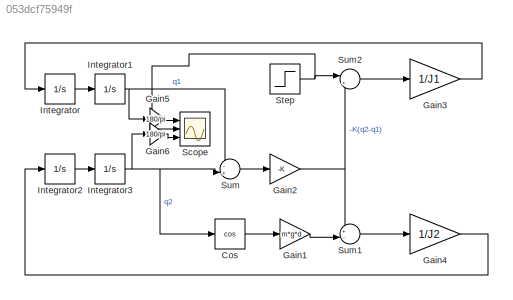
MODEL slx_053dcf75949f
KIND model
CONFIG AbsTol = auto
CONFIG EnableMultiTasking = off
CONFIG FixedStep = auto
CONFIG InitFcn = K=0.1;\n\nm=10;\ng=9.81;\nd = 0.5;\n\nJ1 = 1;\nJ2 = 10;
CONFIG MaxStep = auto
CONFIG MinStep = auto
CONFIG RelTol = 1e-3
CONFIG SampleTimeConstraint = Unconstrained
CONFIG SolverName = VariableStepAuto
CONFIG StartTime = 0.0
CONFIG StopTime = 10
BLOCK [Trigonometry] Cos
  Operator = cos
  Ports = [1, 1]
BLOCK [Gain] Gain1
  Gain = m*g*d
BLOCK [Gain] Gain2
  Gain = -K
BLOCK [Gain] Gain3
  Gain = 1/J1
BLOCK [Gain] Gain4
  Gain = 1/J2
BLOCK [Gain] Gain5
  Gain = 180/pi
BLOCK [Gain] Gain6
  Gain = 180/pi
BLOCK [Integrator] Integrator
  Ports = [1, 1]
BLOCK [Integrator] Integrator1
  Ports = [1, 1]
BLOCK [Integrator] Integrator2
  Ports = [1, 1]
BLOCK [Integrator] Integrator3
  Ports = [1, 1]
BLOCK [Scope] Scope
  Floating = off
  NumInputPorts = 3
  Ports = [3]
  ScopeSpecificationString = Simulink.scopes.TimeScopeBlockCfg('CurrentConfiguration', extmgr.ConfigurationSet(extmgr.Configuration('Core','General UI',true),extmgr.Configuration('Core','Source UI',true),extmgr.Configuration('Sources','WiredSimulink',true),extmgr.Configuration('Visuals','Time Domain',true,'SerializedDisplays',{struct('MinYLimReal','-1078.35746','MaxYLimReal','7922.51293','YLabelReal','','MinYLimMag','  0.0000...<+1433ch>
BLOCK [Step] Step
  After = 2
  SampleTime = 0
  Time = 2
BLOCK [Sum] Sum
  Inputs = -+|
  Ports = [2, 1]
BLOCK [Sum] Sum1
  Inputs = +-|
  Ports = [2, 1]
BLOCK [Sum] Sum2
  Inputs = |++
  Ports = [2, 1]
LINE Cos:1 -> Gain1:1
LINE Gain1:1 -> Sum1:2
NET Gain2:1 -> Sum1:1, Sum2:2
LINE Gain3:1 -> Integrator:1
LINE Gain4:1 -> Integrator2:1
LINE Gain5:1 -> Scope:1
LINE Gain6:1 -> Scope:3
NET Integrator1:1 -> Gain5:1, Sum:1
LINE Integrator2:1 -> Integrator3:1
NET Integrator3:1 -> Cos:1, Gain6:1, Sum:2
LINE Integrator:1 -> Integrator1:1
NET Step:1 -> Scope:2, Sum2:1
LINE Sum1:1 -> Gain4:1
LINE Sum2:1 -> Gain3:1
LINE Sum:1 -> Gain2:1
note: NET lines group one-source signal fan-out (src -> all destinations, sorted); 1:1 wires keep LINE
